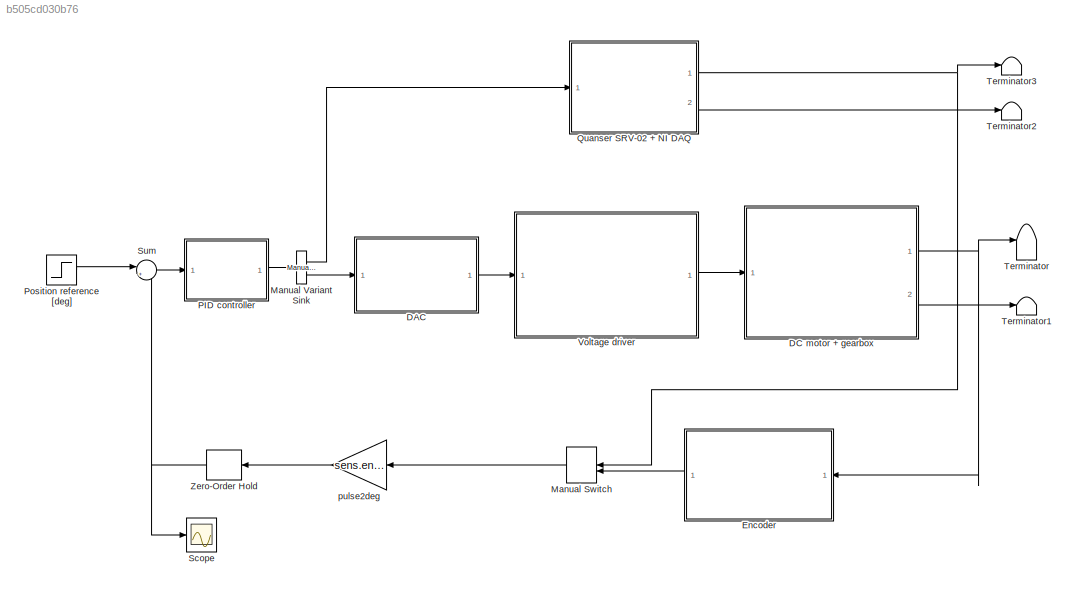
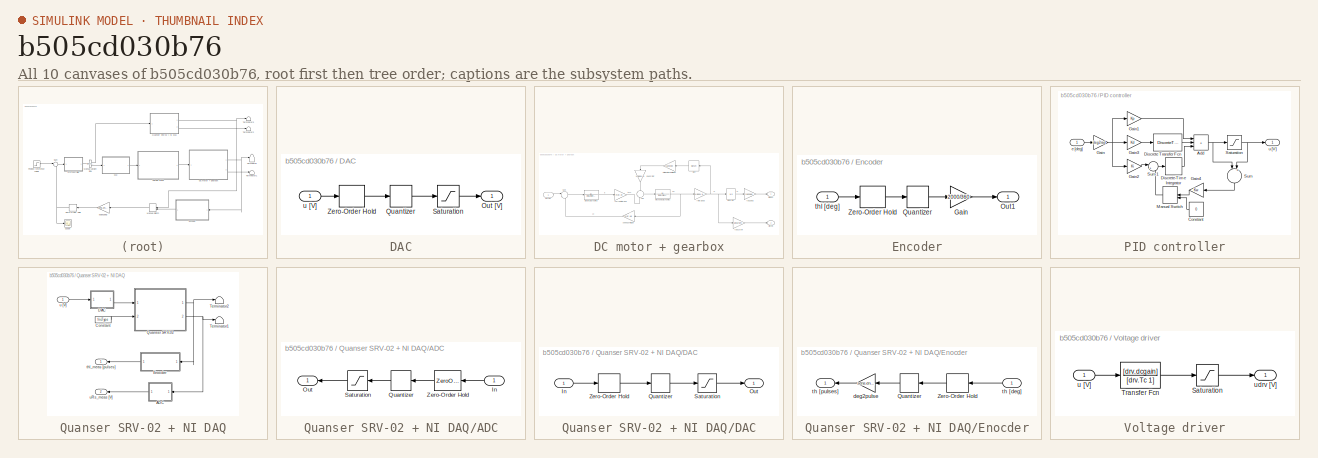
[diagram: thumbnail index - all 10 canvases of the model, root first then tree order]
MODEL slx_b505cd030b76
KIND model
CONFIG AbsTol = auto
CONFIG EnableMultiTasking = off
CONFIG FixedStep = 0.0001
CONFIG MaxStep = auto
CONFIG MinStep = auto
CONFIG RelTol = 1e-3
CONFIG SampleTimeConstraint = Unconstrained
CONFIG SolverName = FixedStepAuto
CONFIG StartTime = 0.0
CONFIG StopTime = 30.0
BLOCK [SubSystem] DAC
  Ports = [1, 1]
  RequestExecContextInheritance = off
BLOCK [Outport] DAC/Out [V]
BLOCK [Quantizer] DAC/Quantizer
  QuantizationInterval = 20/(2^16-1)
BLOCK [Saturate] DAC/Saturation
  LowerLimit = -10
  UpperLimit = 10
BLOCK [ZeroOrderHold] DAC/Zero-Order Hold
  SampleTime = Ts
BLOCK [Inport] DAC/u [V]
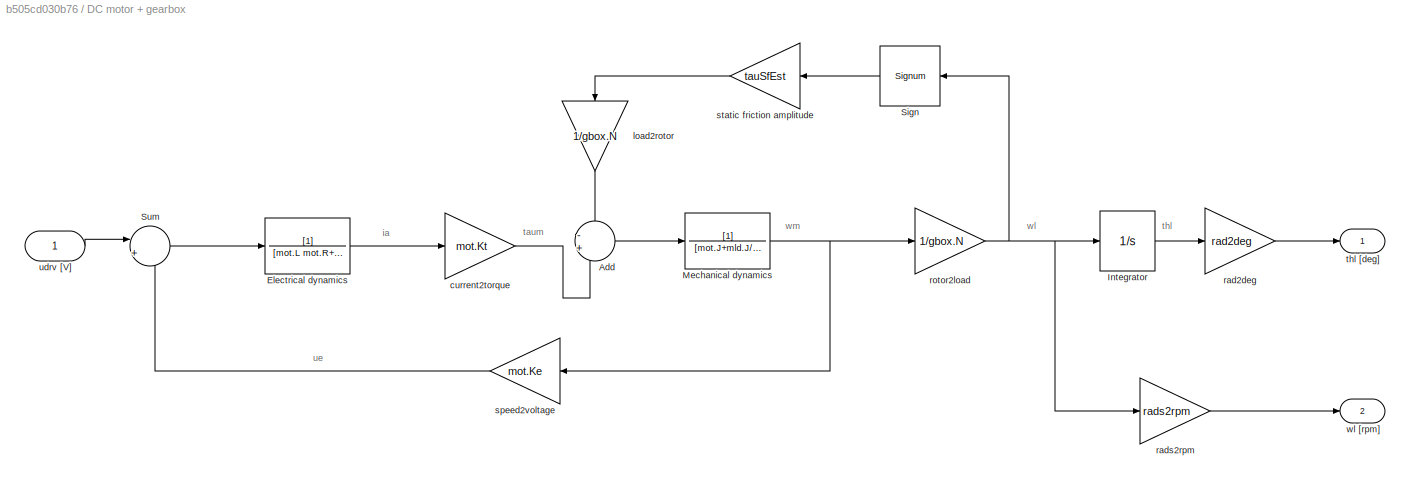
BLOCK [SubSystem] DC motor + gearbox
  Ports = [1, 2]
  RequestExecContextInheritance = off
BLOCK [Sum] DC motor + gearbox/Add
  Inputs = -+
  Ports = [2, 1]
BLOCK [TransferFcn] DC motor + gearbox/Electrical dynamics
  Denominator = [mot.L mot.R+sens.curr.Rs]
BLOCK [Integrator] DC motor + gearbox/Integrator
  Ports = [1, 1]
BLOCK [TransferFcn] DC motor + gearbox/Mechanical dynamics
  Denominator = [mot.J+mld.J/gbox.N^2 mot.B+mld.B/gbox.N^2]
BLOCK [Signum] DC motor + gearbox/Sign
  ZeroCross = off
BLOCK [Sum] DC motor + gearbox/Sum
  Inputs = |+-
  Ports = [2, 1]
BLOCK [Gain] DC motor + gearbox/current2torque
  Gain = mot.Kt
BLOCK [Gain] DC motor + gearbox/load2rotor
  Gain = 1/gbox.N
  NameLocation = left
BLOCK [Gain] DC motor + gearbox/rad2deg
  Gain = rad2deg
BLOCK [Gain] DC motor + gearbox/rads2rpm
  Gain = rads2rpm
BLOCK [Gain] DC motor + gearbox/rotor2load
  Gain = 1/gbox.N
BLOCK [Gain] DC motor + gearbox/speed2voltage
  Gain = mot.Ke
BLOCK [Gain] DC motor + gearbox/static friction amplitude
  Gain = tauSfEst
  NameLocation = top
BLOCK [Outport] DC motor + gearbox/thl [deg] 
BLOCK [Inport] DC motor + gearbox/udrv [V]
BLOCK [Outport] DC motor + gearbox/wl [rpm]
  Port = 2
BLOCK [SubSystem] Encoder
  Ports = [1, 1]
  RequestExecContextInheritance = off
BLOCK [Gain] Encoder/Gain
  Gain = 2000/360
BLOCK [Outport] Encoder/Out1
BLOCK [Quantizer] Encoder/Quantizer
  QuantizationInterval = 360/(500*4)
BLOCK [ZeroOrderHold] Encoder/Zero-Order Hold
  SampleTime = Ts
BLOCK [Inport] Encoder/thl [deg] 
BLOCK [ManualSwitch] Manual Switch
  CurrentSetting = 0
  NameLocation = top
BLOCK [Reference] Manual Variant Sink  REF=simulink/Signal
Routing/Manual
Variant Sink
  Ports = [1, 2]
  SourceBlock = simulink/Signal\nRouting/Manual\nVariant Sink
  SourceProductBaseCode = SL
  SourceType = ManualVariantSink
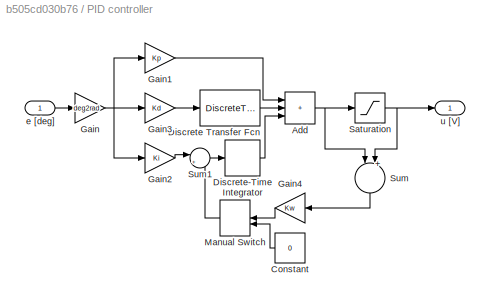
BLOCK [SubSystem] PID controller
  Ports = [1, 1]
  RequestExecContextInheritance = off
BLOCK [Sum] PID controller/Add
  IconShape = rectangular
  Inputs = +++
  Ports = [3, 1]
BLOCK [Constant] PID controller/Constant
  Value = 0
BLOCK [DiscreteTransferFcn] PID controller/Discrete Transfer Fcn
  Denominator = [(Tl+Ts) -Tl]
  InputPortMap = u0
  Numerator = [1 -1]
  Ports = [1, 1]
  SampleTime = Ts
BLOCK [DiscreteIntegrator] PID controller/Discrete-Time Integrator
  ICPrevOutput = DiscIntNeverNeededParam
  ICPrevScaledInput = DiscIntNeverNeededParam
  InitialConditionSetting = Auto
  IntegratorMethod = Integration: Backward Euler
  Ports = [1, 1]
  SampleTime = Ts
BLOCK [Gain] PID controller/Gain
  Gain = deg2rad
BLOCK [Gain] PID controller/Gain1
  Gain = Kp
BLOCK [Gain] PID controller/Gain2
  Gain = Ki
BLOCK [Gain] PID controller/Gain3
  Gain = Kd
BLOCK [Gain] PID controller/Gain4
  Gain = Kw
BLOCK [ManualSwitch] PID controller/Manual Switch
  CurrentSetting = 0
  NameLocation = top
BLOCK [Saturate] PID controller/Saturation
  LowerLimit = -10
  UpperLimit = 10
BLOCK [Sum] PID controller/Sum
  Inputs = ||+-||
  NameLocation = left
  Ports = [2, 1]
BLOCK [Sum] PID controller/Sum1
  Inputs = |+-
  Ports = [2, 1]
BLOCK [Inport] PID controller/e [deg]
BLOCK [Outport] PID controller/u [V]
BLOCK [Step] Position reference [deg]
  After = 50
  SampleTime = Ts
BLOCK [SubSystem] Quanser SRV-02 + NI DAQ
  Ports = [1, 2]
  RequestExecContextInheritance = off
BLOCK [SubSystem] Quanser SRV-02 + NI DAQ/ADC
  Ports = [1, 1]
  RequestExecContextInheritance = off
BLOCK [Inport] Quanser SRV-02 + NI DAQ/ADC/In
BLOCK [Outport] Quanser SRV-02 + NI DAQ/ADC/Out
BLOCK [Quantizer] Quanser SRV-02 + NI DAQ/ADC/Quantizer
  QuantizationInterval = daq.adc.q
BLOCK [Saturate] Quanser SRV-02 + NI DAQ/ADC/Saturation
  LowerLimit = -daq.adc.fs
  UpperLimit = daq.adc.fs
BLOCK [ZeroOrderHold] Quanser SRV-02 + NI DAQ/ADC/Zero-Order Hold
  SampleTime = Ts
BLOCK [Constant] Quanser SRV-02 + NI DAQ/Constant
  Value = fricType
BLOCK [SubSystem] Quanser SRV-02 + NI DAQ/DAC
  Ports = [1, 1]
  RequestExecContextInheritance = off
BLOCK [Inport] Quanser SRV-02 + NI DAQ/DAC/In
BLOCK [Outport] Quanser SRV-02 + NI DAQ/DAC/Out
BLOCK [Quantizer] Quanser SRV-02 + NI DAQ/DAC/Quantizer
  QuantizationInterval = daq.dac.q
BLOCK [Saturate] Quanser SRV-02 + NI DAQ/DAC/Saturation
  LowerLimit = -daq.dac.fs
  UpperLimit = daq.dac.fs
BLOCK [ZeroOrderHold] Quanser SRV-02 + NI DAQ/DAC/Zero-Order Hold
  SampleTime = Ts
BLOCK [SubSystem] Quanser SRV-02 + NI DAQ/Enocder
  Ports = [1, 1]
  RequestExecContextInheritance = off
BLOCK [Quantizer] Quanser SRV-02 + NI DAQ/Enocder/Quantizer
  QuantizationInterval = sens.enc.pulse2deg
BLOCK [ZeroOrderHold] Quanser SRV-02 + NI DAQ/Enocder/Zero-Order Hold
  SampleTime = Ts
BLOCK [Gain] Quanser SRV-02 + NI DAQ/Enocder/deg2pulse
  Gain = sens.enc.deg2pulse
BLOCK [Inport] Quanser SRV-02 + NI DAQ/Enocder/th [deg]
BLOCK [Outport] Quanser SRV-02 + NI DAQ/Enocder/th [pulses]
BLOCK [ModelReference] Quanser SRV-02 + NI DAQ/Quanser SRV-02
  CopyOfModelProtected = on
  ModelNameDialog = SRV02IL_maci64.slxp
  ModelReferenceVersion = 1.44
  Ports = [2, 2]
BLOCK [Terminator] Quanser SRV-02 + NI DAQ/Terminator1
BLOCK [Terminator] Quanser SRV-02 + NI DAQ/Terminator2
BLOCK [Outport] Quanser SRV-02 + NI DAQ/thl_meas [pulses]
BLOCK [Inport] Quanser SRV-02 + NI DAQ/u [V]
BLOCK [Outport] Quanser SRV-02 + NI DAQ/uRs_meas [V]
  Port = 2
BLOCK [Scope] Scope
  Floating = off
  NumInputPorts = 1
  Ports = [1]
  ScopeSpecificationString = Simulink.scopes.TimeScopeBlockCfg('CurrentConfiguration', extmgr.ConfigurationSet(extmgr.Configuration('Core','General UI',true),extmgr.Configuration('Core','Source UI',true),extmgr.Configuration('Sources','WiredSimulink',true,'DataLogging',true,'DataLoggingSaveFormat','StructureWithTime'),extmgr.Configuration('Visuals','Time Domain',true,'SerializedDisplays',{struct('MinYLimReal','-8.0325','MaxYL...<+1469ch>
BLOCK [Sum] Sum
  Inputs = |+-
  Ports = [2, 1]
BLOCK [Terminator] Terminator
BLOCK [Terminator] Terminator1
BLOCK [Terminator] Terminator2
BLOCK [Terminator] Terminator3
BLOCK [SubSystem] Voltage driver
  Ports = [1, 1]
  RequestExecContextInheritance = off
BLOCK [Saturate] Voltage driver/Saturation
  LowerLimit = -10
  UpperLimit = 10
BLOCK [TransferFcn] Voltage driver/Transfer Fcn
  Denominator = [drv.Tc 1]
  Numerator = [drv.dcgain]
BLOCK [Inport] Voltage driver/u [V]
BLOCK [Outport] Voltage driver/udrv [V]
BLOCK [ZeroOrderHold] Zero-Order Hold
  SampleTime = Ts
BLOCK [Gain] pulse2deg
  Gain = sens.enc.pulse2deg
ANNOTATION DC motor + gearbox: ia
ANNOTATION DC motor + gearbox: taum
ANNOTATION DC motor + gearbox: thl
ANNOTATION DC motor + gearbox: ue
ANNOTATION DC motor + gearbox: wl
ANNOTATION DC motor + gearbox: wm
LINE DAC/Quantizer:1 -> DAC/Saturation:1
LINE DAC/Saturation:1 -> DAC/Out [V]:1
LINE DAC/Zero-Order Hold:1 -> DAC/Quantizer:1
LINE DAC/u [V]:1 -> DAC/Zero-Order Hold:1
LINE DAC:1 -> Voltage driver:1
LINE DC motor + gearbox/Add:1 -> DC motor + gearbox/Mechanical dynamics:1
LINE DC motor + gearbox/Electrical dynamics:1 -> DC motor + gearbox/current2torque:1
LINE DC motor + gearbox/Integrator:1 -> DC motor + gearbox/rad2deg:1
NET DC motor + gearbox/Mechanical dynamics:1 -> DC motor + gearbox/rotor2load:1, DC motor + gearbox/speed2voltage:1
LINE DC motor + gearbox/Sign:1 -> DC motor + gearbox/static friction amplitude:1
LINE DC motor + gearbox/Sum:1 -> DC motor + gearbox/Electrical dynamics:1
LINE DC motor + gearbox/current2torque:1 -> DC motor + gearbox/Add:2
LINE DC motor + gearbox/load2rotor:1 -> DC motor + gearbox/Add:1
LINE DC motor + gearbox/rad2deg:1 -> DC motor + gearbox/thl [deg] :1
LINE DC motor + gearbox/rads2rpm:1 -> DC motor + gearbox/wl [rpm]:1
NET DC motor + gearbox/rotor2load:1 -> DC motor + gearbox/Integrator:1, DC motor + gearbox/Sign:1, DC motor + gearbox/rads2rpm:1
LINE DC motor + gearbox/speed2voltage:1 -> DC motor + gearbox/Sum:2
LINE DC motor + gearbox/static friction amplitude:1 -> DC motor + gearbox/load2rotor:1
LINE DC motor + gearbox/udrv [V]:1 -> DC motor + gearbox/Sum:1
NET DC motor + gearbox:1 -> Encoder:1, Terminator:1
LINE DC motor + gearbox:2 -> Terminator1:1
LINE Encoder/Gain:1 -> Encoder/Out1:1
LINE Encoder/Quantizer:1 -> Encoder/Gain:1
LINE Encoder/Zero-Order Hold:1 -> Encoder/Quantizer:1
LINE Encoder/thl [deg] :1 -> Encoder/Zero-Order Hold:1
LINE Encoder:1 -> Manual Switch:2
LINE Manual Switch:1 -> pulse2deg:1
LINE Manual Variant Sink:1 -> Quanser SRV-02 + NI DAQ:1
LINE Manual Variant Sink:2 -> DAC:1
NET PID controller/Add:1 -> PID controller/Saturation:1, PID controller/Sum:1
LINE PID controller/Constant:1 -> PID controller/Manual Switch:2
LINE PID controller/Discrete Transfer Fcn:1 -> PID controller/Add:2
LINE PID controller/Discrete-Time Integrator:1 -> PID controller/Add:3
LINE PID controller/Gain1:1 -> PID controller/Add:1
LINE PID controller/Gain2:1 -> PID controller/Sum1:1
LINE PID controller/Gain3:1 -> PID controller/Discrete Transfer Fcn:1
LINE PID controller/Gain4:1 -> PID controller/Manual Switch:1
NET PID controller/Gain:1 -> PID controller/Gain1:1, PID controller/Gain2:1, PID controller/Gain3:1
LINE PID controller/Manual Switch:1 -> PID controller/Sum1:2
NET PID controller/Saturation:1 -> PID controller/Sum:2, PID controller/u [V]:1
LINE PID controller/Sum1:1 -> PID controller/Discrete-Time Integrator:1
LINE PID controller/Sum:1 -> PID controller/Gain4:1
LINE PID controller/e [deg]:1 -> PID controller/Gain:1
LINE PID controller:1 -> Manual Variant Sink:1
LINE Position reference [deg]:1 -> Sum:1
LINE Quanser SRV-02 + NI DAQ/ADC/In:1 -> Quanser SRV-02 + NI DAQ/ADC/Zero-Order Hold:1
LINE Quanser SRV-02 + NI DAQ/ADC/Quantizer:1 -> Quanser SRV-02 + NI DAQ/ADC/Saturation:1
LINE Quanser SRV-02 + NI DAQ/ADC/Saturation:1 -> Quanser SRV-02 + NI DAQ/ADC/Out:1
LINE Quanser SRV-02 + NI DAQ/ADC/Zero-Order Hold:1 -> Quanser SRV-02 + NI DAQ/ADC/Quantizer:1
LINE Quanser SRV-02 + NI DAQ/ADC:1 -> Quanser SRV-02 + NI DAQ/uRs_meas [V]:1
LINE Quanser SRV-02 + NI DAQ/Constant:1 -> Quanser SRV-02 + NI DAQ/Quanser SRV-02:2
LINE Quanser SRV-02 + NI DAQ/DAC/In:1 -> Quanser SRV-02 + NI DAQ/DAC/Zero-Order Hold:1
LINE Quanser SRV-02 + NI DAQ/DAC/Quantizer:1 -> Quanser SRV-02 + NI DAQ/DAC/Saturation:1
LINE Quanser SRV-02 + NI DAQ/DAC/Saturation:1 -> Quanser SRV-02 + NI DAQ/DAC/Out:1
LINE Quanser SRV-02 + NI DAQ/DAC/Zero-Order Hold:1 -> Quanser SRV-02 + NI DAQ/DAC/Quantizer:1
LINE Quanser SRV-02 + NI DAQ/DAC:1 -> Quanser SRV-02 + NI DAQ/Quanser SRV-02:1
LINE Quanser SRV-02 + NI DAQ/Enocder/Quantizer:1 -> Quanser SRV-02 + NI DAQ/Enocder/deg2pulse:1
LINE Quanser SRV-02 + NI DAQ/Enocder/Zero-Order Hold:1 -> Quanser SRV-02 + NI DAQ/Enocder/Quantizer:1
LINE Quanser SRV-02 + NI DAQ/Enocder/deg2pulse:1 -> Quanser SRV-02 + NI DAQ/Enocder/th [pulses]:1
LINE Quanser SRV-02 + NI DAQ/Enocder/th [deg]:1 -> Quanser SRV-02 + NI DAQ/Enocder/Zero-Order Hold:1
LINE Quanser SRV-02 + NI DAQ/Enocder:1 -> Quanser SRV-02 + NI DAQ/thl_meas [pulses]:1
NET Quanser SRV-02 + NI DAQ/Quanser SRV-02:1 -> Quanser SRV-02 + NI DAQ/Enocder:1, Quanser SRV-02 + NI DAQ/Terminator2:1
NET Quanser SRV-02 + NI DAQ/Quanser SRV-02:2 -> Quanser SRV-02 + NI DAQ/ADC:1, Quanser SRV-02 + NI DAQ/Terminator1:1
LINE Quanser SRV-02 + NI DAQ/u [V]:1 -> Quanser SRV-02 + NI DAQ/DAC:1
NET Quanser SRV-02 + NI DAQ:1 -> Manual Switch:1, Terminator3:1
LINE Quanser SRV-02 + NI DAQ:2 -> Terminator2:1
LINE Sum:1 -> PID controller:1
LINE Voltage driver/Saturation:1 -> Voltage driver/udrv [V]:1
LINE Voltage driver/Transfer Fcn:1 -> Voltage driver/Saturation:1
LINE Voltage driver/u [V]:1 -> Voltage driver/Transfer Fcn:1
LINE Voltage driver:1 -> DC motor + gearbox:1
NET Zero-Order Hold:1 -> Scope:1, Sum:2
LINE pulse2deg:1 -> Zero-Order Hold:1
note: NET lines group one-source signal fan-out (src -> all destinations, sorted); 1:1 wires keep LINE
